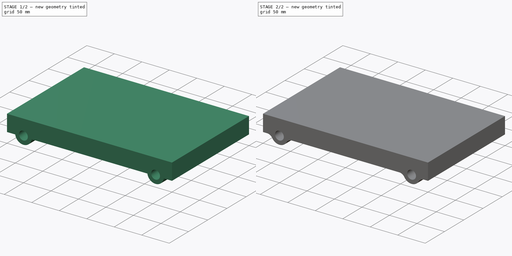
[diagram: build sequence overview — one tinted view per stage of 2, left to right]
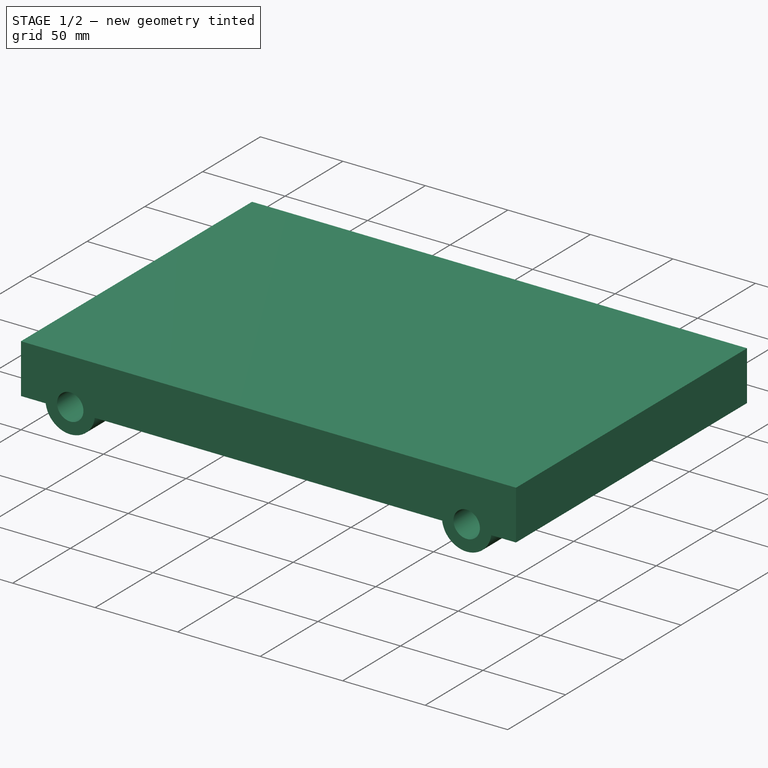
[diagram: stage 1 of 2 — iso view after this stage's code; geometry added in this stage tinted green]
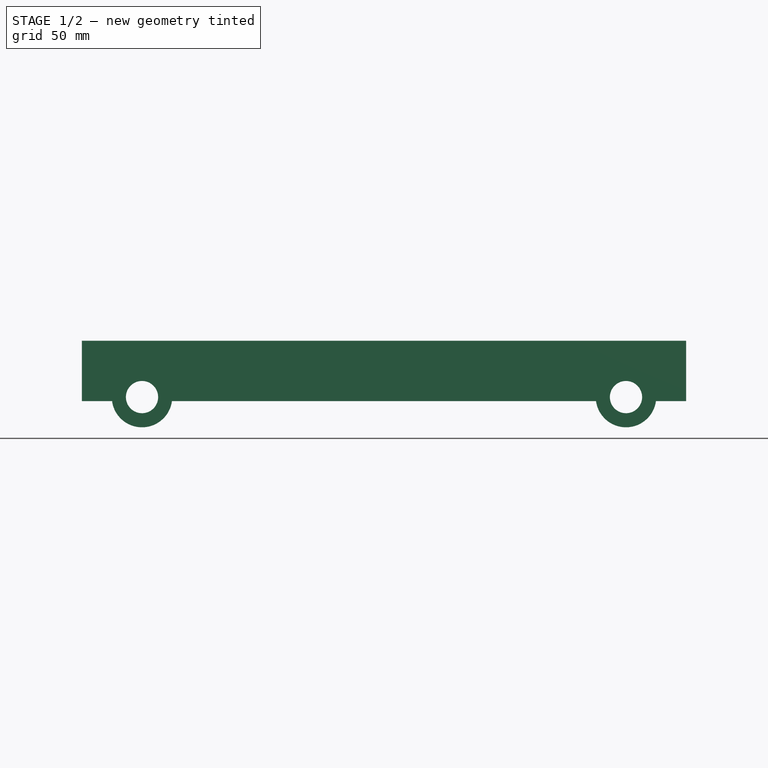
[diagram: stage 1 of 2 — front view after this stage's code; geometry added in this stage tinted green]
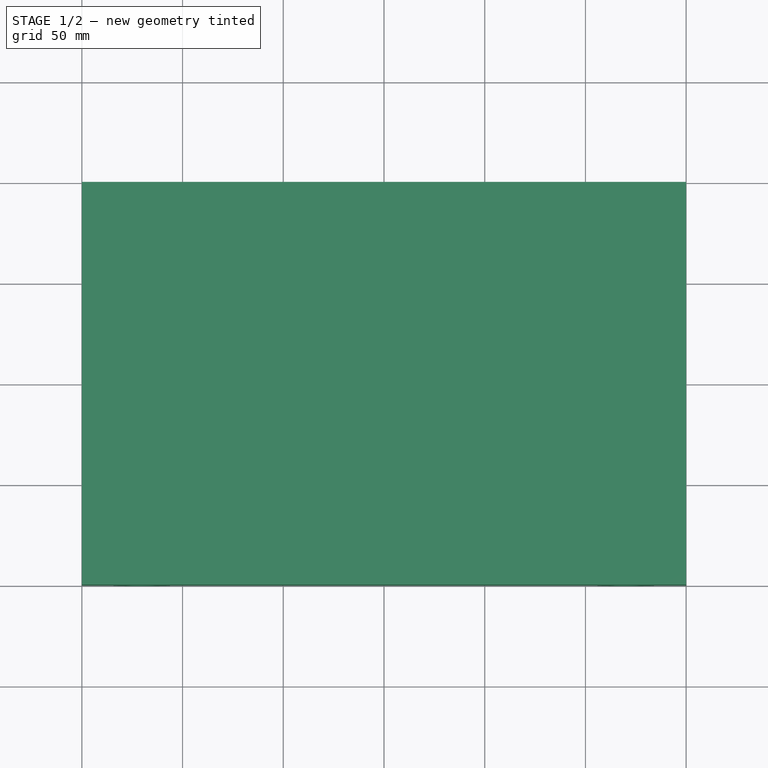
[diagram: stage 1 of 2 — top view after this stage's code; geometry added in this stage tinted green]
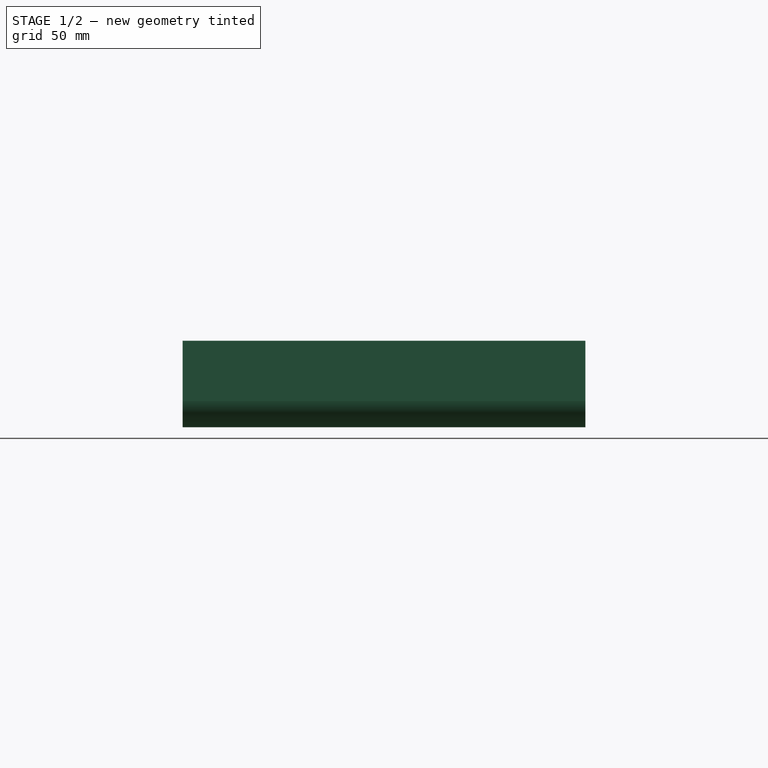
[diagram: stage 1 of 2 — right view after this stage's code; geometry added in this stage tinted green]
FCSTD DOCUMENT  (FreeCAD 0.18.4R)
Label: base
License: All rights reserved
LicenseURL: http://en.wikipedia.org/wiki/All_rights_reserved
objects: Sketcher::SketchObject×1, PartDesign::Pad×1, PartDesign::Fillet×1, PartDesign::Body×1
note: 5 computed .brp shape members not serialized (recipe doc carries the construction recipe); baked Part::Feature solids carry a one-line shape summary decoded from their .brp

FEATURE [Sketcher::SketchObject] Sketch
  MapMode = 5
  Placement = pos=(0,0,0) rot=(1,0,0;1.5708rad)
  Support = -> [XZ_Plane]
  sketch-geometry (10):
    g0: LineSegment StartX=-150 StartY=15 StartZ=0 EndX=150 EndY=15 EndZ=0
    g1: LineSegment StartX=150 StartY=15 StartZ=0 EndX=150 EndY=-15 EndZ=0
    g2: LineSegment StartX=150 StartY=-15 StartZ=0 EndX=135 EndY=-15 EndZ=0
    g3: LineSegment StartX=-150 StartY=-15 StartZ=0 EndX=-150 EndY=15 EndZ=0
    g4: ArcOfCircle CenterX=-120.134 CenterY=-13 CenterZ=0 NormalX=0 NormalY=0 NormalZ=1 AngleXU=0 Radius=15 StartAngle=3.27532 EndAngle=6.14945
    g5: LineSegment StartX=-135 StartY=-15 StartZ=0 EndX=-150 EndY=-15 EndZ=0
    g6: Circle CenterX=-120.134 CenterY=-13 CenterZ=0 NormalX=0 NormalY=0 NormalZ=1 AngleXU=0 Radius=8
    g7: ArcOfCircle CenterX=120.134 CenterY=-13 CenterZ=0 NormalX=0 NormalY=0 NormalZ=1 AngleXU=0 Radius=15 StartAngle=3.27532 EndAngle=6.14945
    g8: Circle CenterX=120.134 CenterY=-13 CenterZ=0 NormalX=0 NormalY=0 NormalZ=1 AngleXU=0 Radius=8
    g9: LineSegment StartX=105.268 StartY=-15 StartZ=0 EndX=-105.268 EndY=-15 EndZ=0
  constraints (28):
    c: Coincident(g0,g1)
    c: Coincident(g1,g2)
    c: Coincident(g5,g3)
    c: Coincident(g3,g0)
    c: Horizontal(g0)
    c: Horizontal(g2)
    c: Vertical(g1)
    c: Vertical(g3)
    c: Distance(g0) = 300
    c: Symmetric(g5,g0,g-1)
    c: Radius(g4) = 15
    c: Distance(g1) = 30
    c: Tangent(g2,g5)
    c: Coincident(g4,g9)
    c: Coincident(g5,g4)
    c: DistanceX(g3,g4) = 15
    c: DistanceY(g9,g4) = 2
    c: Coincident(g6,g4)
    c: Radius(g6) = 8
    c: Radius(g7) = 15
    c: Coincident(g8,g7)
    c: Radius(g8) = 8
    c: Tangent(g2,g9)
    c: PointOnObject(g2,g7)
    c: DistanceX(g2,g1) = 15
    c: DistanceY(g9,g7) = 2
    c: Coincident(g7,g9)
    c: PointOnObject(g7,g2)
FEATURE [PartDesign::Pad] Pad
  Length = 200
  Length2 = 100
  Placement = pos=(0,0,0) rot=(1,0,0;1.5708rad)
  Profile = -> Sketch
  Type = 0
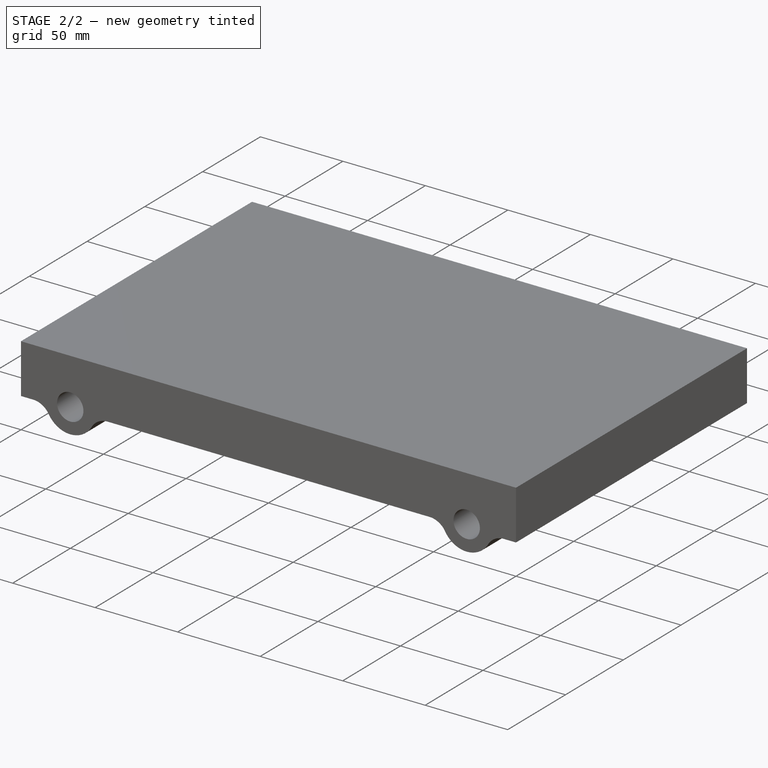
[diagram: stage 2 of 2 — iso view after this stage's code; geometry added in this stage tinted green]
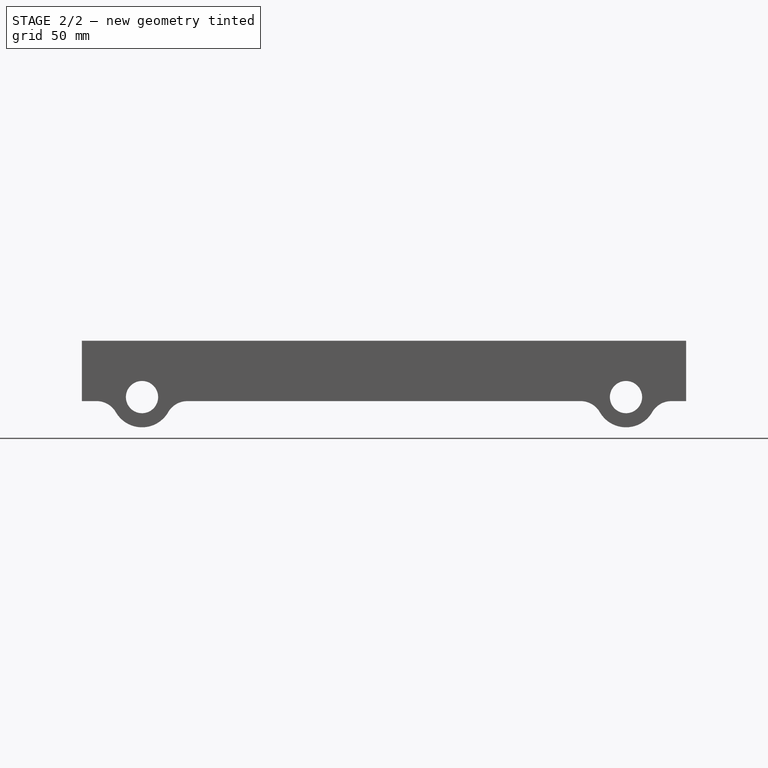
[diagram: stage 2 of 2 — front view after this stage's code; geometry added in this stage tinted green]
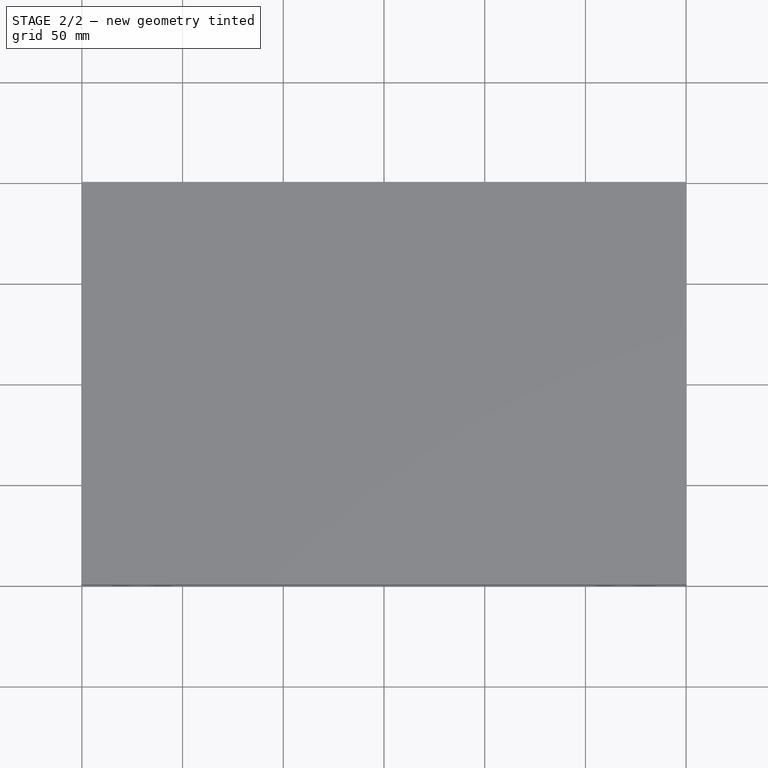
[diagram: stage 2 of 2 — top view after this stage's code; geometry added in this stage tinted green]
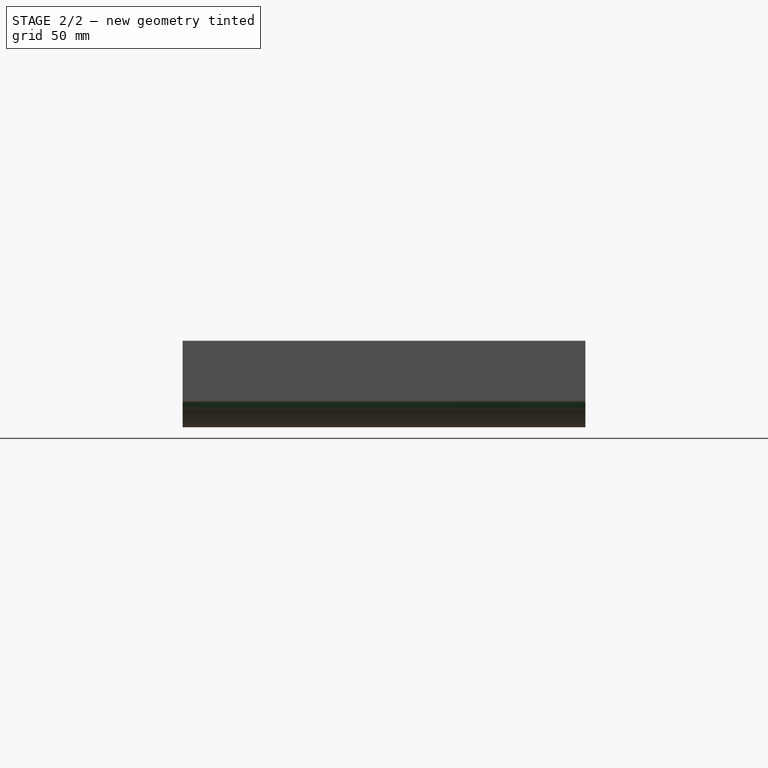
[diagram: stage 2 of 2 — right view after this stage's code; geometry added in this stage tinted green]
FEATURE [PartDesign::Fillet] Fillet
  Base = -> Pad [Edge1,Edge20,Edge17,Edge14]
  BaseFeature = -> Pad
  Placement = pos=(0,0,0) rot=(1,0,0;1.5708rad)
  Radius = 11
FEATURE [PartDesign::Body] Body
  Group = -> [Sketch,Pad,Fillet]
  Origin = -> Origin
  Tip = -> Fillet
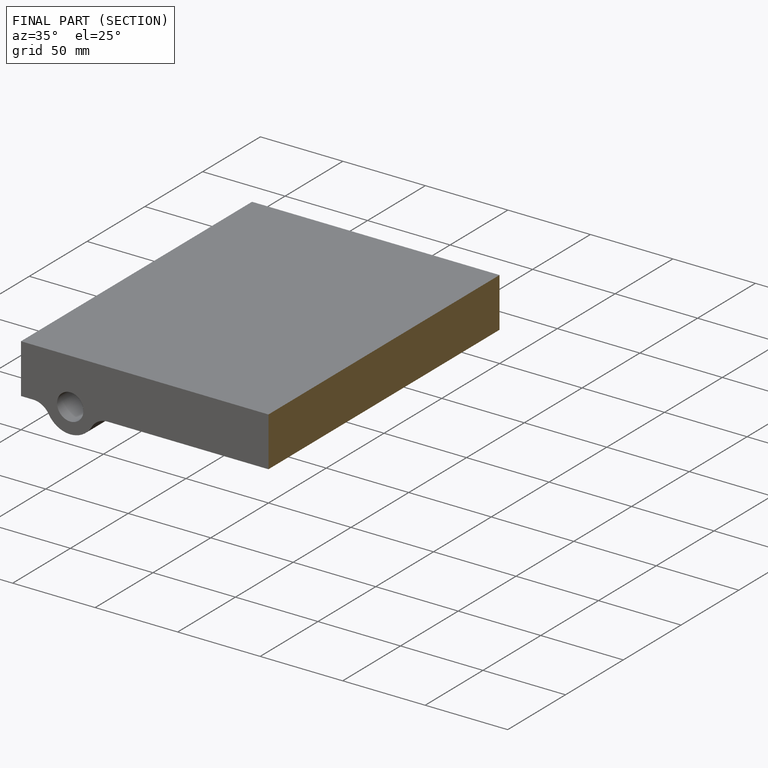
[diagram: finished part — half-section view (interior)]
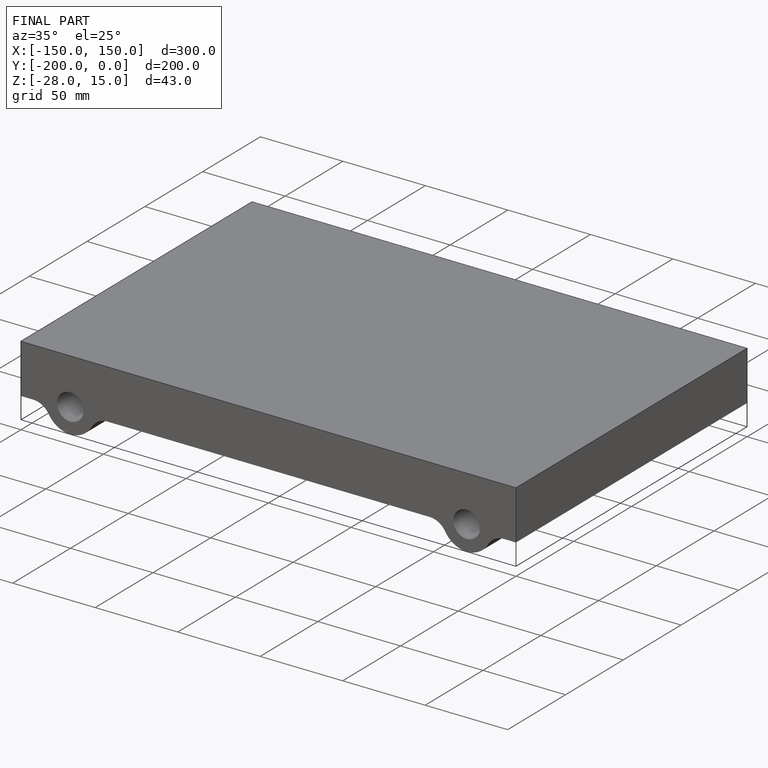
[diagram: finished part — iso view with bounding-box wireframe]
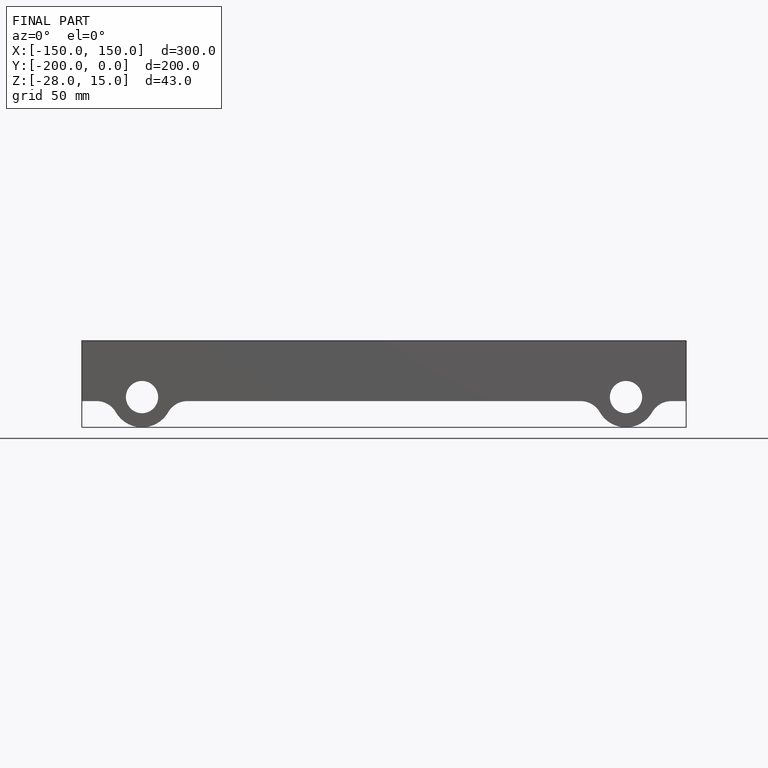
[diagram: finished part — front view with bounding-box wireframe]
